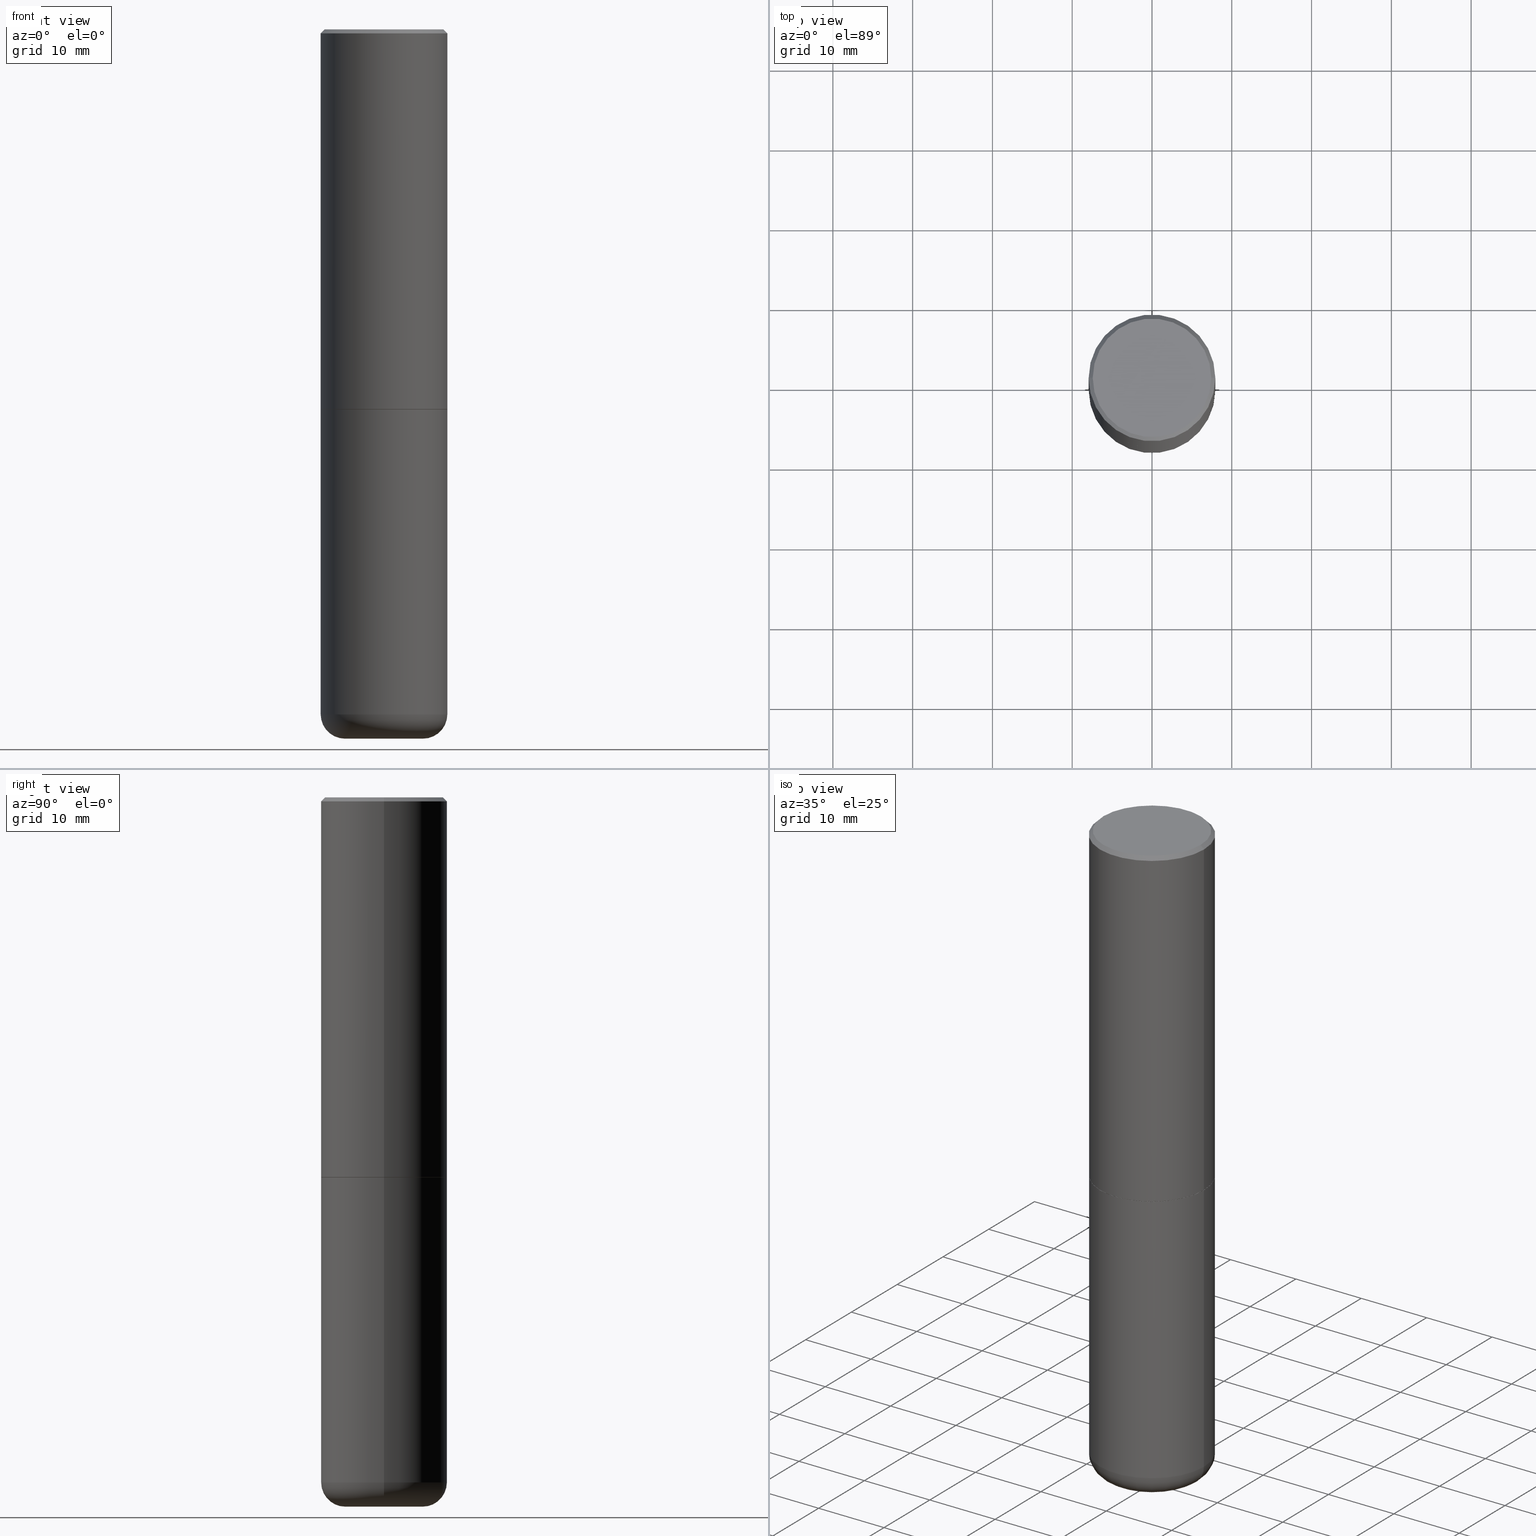
[diagram: canonical four-view strip — front | top / right | iso, engineering-drawing reading convention]
A machine part, canonical four-view strip (front | top / right | iso — engineering-drawing reading convention). The complete STEP part file that produces these views, byte-faithful:
ISO-10303-21;
HEADER;
FILE_DESCRIPTION (( 'STEP AP203' ),
    '1' );
FILE_NAME ('35120.STEP',
    '2022-07-29T12:17:41',
    ( '' ),
    ( '' ),
    'SwSTEP 2.0',
    'SolidWorks 2022',
    '' );
FILE_SCHEMA (( 'CONFIG_CONTROL_DESIGN' ));
ENDSEC;

DATA;
#1 = CIRCLE ( 'NONE', #484, 0.3114999999999997216 ) ;
#2 = ORIENTED_EDGE ( 'NONE', *, *, #405, .T. ) ;
#3 = COORDINATED_UNIVERSAL_TIME_OFFSET ( 5, 0, .BEHIND. ) ;
#4 = VERTEX_POINT ( 'NONE', #437 ) ;
#5 = ADVANCED_FACE ( 'NONE', ( #59 ), #174, .F. ) ;
#6 = MANIFOLD_SOLID_BREP ( 'Body-Move/Copy2[2]', #312 ) ;
#7 = CIRCLE ( 'NONE', #29, 0.2924999999999993716 ) ;
#8 = CARTESIAN_POINT ( 'NONE',  ( 8.559140821647976968E-29, -1.222018468595100619E-14, -3.499999999999999112 ) ) ;
#9 = DIRECTION ( 'NONE',  ( 1.000000000000000000, -6.982962677686266711E-15, 4.876176775795935232E-29 ) ) ;
#10 = EDGE_CURVE ( 'NONE', #79, #384, #96, .T. ) ;
#11 = CARTESIAN_POINT ( 'NONE',  ( -1.043851414335219820E-46, 1.490343170380447200E-32, 4.268512490100411279E-18 ) ) ;
#12 = DIRECTION ( 'NONE',  ( -2.438088387897960049E-29, 3.491481338843145188E-15, 1.000000000000000000 ) ) ;
#13 = AXIS2_PLACEMENT_3D ( 'NONE', #329, #177, #69 ) ;
#14 = DIRECTION ( 'NONE',  ( -2.445468806185136597E-29, 3.491481338843145583E-15, 1.000000000000000000 ) ) ;
#15 = ORIENTED_EDGE ( 'NONE', *, *, #283, .F. ) ;
#16 = FACE_OUTER_BOUND ( 'NONE', #22, .T. ) ;
#17 = DIRECTION ( 'NONE',  ( -2.445468806185136597E-29, 3.491481338843145583E-15, 1.000000000000000000 ) ) ;
#18 = EDGE_CURVE ( 'NONE', #230, #243, #7, .T. ) ;
#19 = CARTESIAN_POINT ( 'NONE',  ( 4.585254011597131119E-29, -6.546527510330898707E-15, -1.875000000000000000 ) ) ;
#20 = CARTESIAN_POINT ( 'NONE',  ( 0.3114999999999997216, -8.721720384430167884E-15, -1.875000000000000000 ) ) ;
#21 = AXIS2_PLACEMENT_3D ( 'NONE', #186, #336, #349 ) ;
#22 = EDGE_LOOP ( 'NONE', ( #306, #415, #15, #314 ) ) ;
#23 =( NAMED_UNIT ( * ) SI_UNIT ( $, .STERADIAN. ) SOLID_ANGLE_UNIT ( ) );
#24 = DIRECTION ( 'NONE',  ( 2.445468806185136597E-29, -3.491481338843145583E-15, -1.000000000000000000 ) ) ;
#25 = AXIS2_PLACEMENT_3D ( 'NONE', #464, #313, #238 ) ;
#26 = ADVANCED_FACE ( 'NONE', ( #282 ), #470, .F. ) ;
#27 = DIRECTION ( 'NONE',  ( 1.000000000000000000, -6.982962677686268288E-15, 0.000000000000000000 ) ) ;
#28 = CARTESIAN_POINT ( 'NONE',  ( -0.3124999999999997224, -1.085986778634146418E-15, -1.873999999999999666 ) ) ;
#29 = AXIS2_PLACEMENT_3D ( 'NONE', #254, #17, #167 ) ;
#30 = DIRECTION ( 'NONE',  ( -2.445468806185136597E-29, 3.491481338843145583E-15, 1.000000000000000000 ) ) ;
#31 = AXIS2_PLACEMENT_3D ( 'NONE', #327, #401, #64 ) ;
#32 = DIRECTION ( 'NONE',  ( 2.445468806185136597E-29, -3.491481338843145583E-15, -1.000000000000000000 ) ) ;
#33 = ADVANCED_FACE ( 'NONE', ( #180 ), #145, .T. ) ;
#34 = CARTESIAN_POINT ( 'NONE',  ( 0.3125000000000000000, -1.398339871545609435E-14, -3.380004569232299083 ) ) ;
#35 = ORIENTED_EDGE ( 'NONE', *, *, #211, .F. ) ;
#36 = COORDINATED_UNIVERSAL_TIME_OFFSET ( 5, 0, .BEHIND. ) ;
#37 = ORIENTED_EDGE ( 'NONE', *, *, #241, .F. ) ;
#38 = PERSON_AND_ORGANIZATION ( #190, #325 ) ;
#39 = ADVANCED_FACE ( 'NONE', ( #445 ), #142, .T. ) ;
#40 = ORIENTED_EDGE ( 'NONE', *, *, #273, .F. ) ;
#41 = ORIENTED_EDGE ( 'NONE', *, *, #241, .T. ) ;
#42 = ORIENTED_EDGE ( 'NONE', *, *, #61, .T. ) ;
#43 = CARTESIAN_POINT ( 'NONE',  ( 0.000000000000000000, 0.000000000000000000, 0.000000000000000000 ) ) ;
#44 = ORIENTED_EDGE ( 'NONE', *, *, #368, .T. ) ;
#45 = CONICAL_SURFACE ( 'NONE', #68, 0.1914528157401960695, 1.562069680534965865 ) ;
#46 = CARTESIAN_POINT ( 'NONE',  ( -0.1914528157401960695, -1.088327681909927092E-14, -3.499999999999999112 ) ) ;
#47 = DIRECTION ( 'NONE',  ( -2.445468806185136597E-29, 3.491481338843145583E-15, 1.000000000000000000 ) ) ;
#48 = CARTESIAN_POINT ( 'NONE',  ( 0.3124999999999997224, -8.728703347107853899E-15, -1.874999999999999778 ) ) ;
#49 = ORIENTED_EDGE ( 'NONE', *, *, #450, .T. ) ;
#50 = DIRECTION ( 'NONE',  ( -2.445468806185136597E-29, 3.491481338843145583E-15, 1.000000000000000000 ) ) ;
#51 = AXIS2_PLACEMENT_3D ( 'NONE', #366, #406, #381 ) ;
#52 = ADVANCED_FACE ( 'NONE', ( #105 ), #183, .F. ) ;
#53 = CC_DESIGN_PERSON_AND_ORGANIZATION_ASSIGNMENT ( #492, #379, ( #427 ) ) ;
#54 = CONICAL_SURFACE ( 'NONE', #176, 0.3114999999999997216, 0.7853981633972775267 ) ;
#55 = DIRECTION ( 'NONE',  ( 2.438088387897960049E-29, -3.491481338843145188E-15, -1.000000000000000000 ) ) ;
#56 = CARTESIAN_POINT ( 'NONE',  ( 4.585254011597131119E-29, -6.546527510330898707E-15, -1.875000000000000000 ) ) ;
#57 = ORIENTED_EDGE ( 'NONE', *, *, #428, .T. ) ;
#58 = CARTESIAN_POINT ( 'NONE',  ( -0.3124999999999997224, -6.953429145254704276E-15, -1.874999999999999778 ) ) ;
#59 = FACE_OUTER_BOUND ( 'NONE', #323, .T. ) ;
#60 = VECTOR ( 'NONE', #474, 39.37007874015748143 ) ;
#61 = EDGE_CURVE ( 'NONE', #384, #448, #293, .T. ) ;
#62 =( NAMED_UNIT ( * ) PLANE_ANGLE_UNIT ( ) SI_UNIT ( $, .RADIAN. ) );
#63 = CIRCLE ( 'NONE', #25, 0.3125000000000000000 ) ;
#64 = DIRECTION ( 'NONE',  ( 1.000000000000000000, -6.982962677686265922E-15, 0.000000000000000000 ) ) ;
#65 = FACE_OUTER_BOUND ( 'NONE', #209, .T. ) ;
#66 = MECHANICAL_CONTEXT ( 'NONE', #476, 'mechanical' ) ;
#67 = DIRECTION ( 'NONE',  ( -2.445468806185136597E-29, 3.491481338843145583E-15, 1.000000000000000000 ) ) ;
#68 = AXIS2_PLACEMENT_3D ( 'NONE', #8, #310, #163 ) ;
#69 = DIRECTION ( 'NONE',  ( 1.000000000000000000, -6.982962677686266711E-15, 0.000000000000000000 ) ) ;
#70 = ADVANCED_FACE ( 'NONE', ( #487 ), #45, .F. ) ;
#71 = CIRCLE ( 'NONE', #208, 0.3125000000000000000 ) ;
#72 = DIRECTION ( 'NONE',  ( -2.445468806185136877E-29, 3.491481338843145188E-15, 1.000000000000000000 ) ) ;
#73 = VERTEX_POINT ( 'NONE', #28 ) ;
#74 = APPROVAL_DATE_TIME ( #414, #471 ) ;
#75 = DIRECTION ( 'NONE',  ( -0.9999619230641716427, 6.952228252019315186E-15, -0.008726535498333042040 ) ) ;
#76 = EDGE_LOOP ( 'NONE', ( #252, #235, #35, #119 ) ) ;
#77 = DATE_TIME_ROLE ( 'creation_date' ) ;
#78 = CC_DESIGN_DATE_AND_TIME_ASSIGNMENT ( #151, #77, ( #214 ) ) ;
#79 = VERTEX_POINT ( 'NONE', #347 ) ;
#80 = PRODUCT_DEFINITION_SHAPE ( 'NONE', 'NONE',  #214 ) ;
#81 = CARTESIAN_POINT ( 'NONE',  ( 4.890937612370309067E-31, -6.982962677686343378E-17, -0.02000000000000014960 ) ) ;
#82 = EDGE_CURVE ( 'NONE', #359, #458, #383, .T. ) ;
#83 = CARTESIAN_POINT ( 'NONE',  ( -0.3124999999999994449, 2.112346210000091499E-15, -0.02000000000000014960 ) ) ;
#84 = ORIENTED_EDGE ( 'NONE', *, *, #284, .F. ) ;
#85 = AXIS2_PLACEMENT_3D ( 'NONE', #441, #370, #257 ) ;
#86 = CARTESIAN_POINT ( 'NONE',  ( 4.582808542790944955E-29, -6.543036028992054122E-15, -1.873999999999999666 ) ) ;
#87 = ORIENTED_EDGE ( 'NONE', *, *, #18, .T. ) ;
#88 = LINE ( 'NONE', #393, #425 ) ;
#89 = ORIENTED_EDGE ( 'NONE', *, *, #165, .F. ) ;
#90 = ADVANCED_FACE ( 'NONE', ( #189 ), #237, .T. ) ;
#91 = ORIENTED_EDGE ( 'NONE', *, *, #82, .T. ) ;
#92 = DIRECTION ( 'NONE',  ( 1.000000000000000000, -6.982962677686266711E-15, 0.000000000000000000 ) ) ;
#93 = DIMENSIONAL_EXPONENTS ( 1.000000000000000000, 0.000000000000000000, 0.000000000000000000, 0.000000000000000000, 0.000000000000000000, 0.000000000000000000, 0.000000000000000000 ) ;
#94 = LOCAL_TIME ( 8, 17, 41.00000000000000000, #449 ) ;
#95 = DIRECTION ( 'NONE',  ( 1.000000000000000000, -6.982962677686261977E-15, 0.000000000000000000 ) ) ;
#96 = LINE ( 'NONE', #20, #60 ) ;
#97 = VERTEX_POINT ( 'NONE', #421 ) ;
#98 = LENGTH_MEASURE_WITH_UNIT ( LENGTH_MEASURE( 0.02539999999999999897 ), #149 );
#99 = UNCERTAINTY_MEASURE_WITH_UNIT (LENGTH_MEASURE( 1.000000000000000082E-05 ), #486, 'distance_accuracy_value', 'NONE');
#100 = DIRECTION ( 'NONE',  ( 0.7071067811865464625, -7.319954787623252890E-15, -0.7071067811865485719 ) ) ;
#101 = CARTESIAN_POINT ( 'NONE',  ( 0.000000000000000000, 0.000000000000000000, 0.000000000000000000 ) ) ;
#102 = PERSON_AND_ORGANIZATION ( #190, #325 ) ;
#103 = APPLICATION_PROTOCOL_DEFINITION ( 'international standard', 'config_control_design', 1994, #476 ) ;
#104 = CARTESIAN_POINT ( 'NONE',  ( 0.000000000000000000, 0.000000000000000000, 0.000000000000000000 ) ) ;
#105 = FACE_OUTER_BOUND ( 'NONE', #396, .T. ) ;
#106 = DATE_AND_TIME ( #181, #264 ) ;
#107 = ADVANCED_FACE ( 'NONE', ( #227 ), #338, .T. ) ;
#108 = DIRECTION ( 'NONE',  ( -2.445468806185136597E-29, 3.491481338843145583E-15, 1.000000000000000000 ) ) ;
#109 = CARTESIAN_POINT ( 'NONE',  ( 4.890937612370309067E-31, -6.982962677686343378E-17, -0.02000000000000014960 ) ) ;
#110 = AXIS2_PLACEMENT_3D ( 'NONE', #81, #224, #184 ) ;
#111 = ORIENTED_EDGE ( 'NONE', *, *, #457, .T. ) ;
#112 = SECURITY_CLASSIFICATION_LEVEL ( 'unclassified' ) ;
#113 = CONICAL_SURFACE ( 'NONE', #355, 0.3114999999999997216, 0.7853981633972775267 ) ;
#114 = DIRECTION ( 'NONE',  ( -2.445468806185136597E-29, 3.491481338843145583E-15, 1.000000000000000000 ) ) ;
#115 = ORIENTED_EDGE ( 'NONE', *, *, #156, .T. ) ;
#116 = PERSON_AND_ORGANIZATION ( #190, #325 ) ;
#117 = CC_DESIGN_PERSON_AND_ORGANIZATION_ASSIGNMENT ( #38, #193, ( #417 ) ) ;
#118 = ADVANCED_BREP_SHAPE_REPRESENTATION ( '35120', ( #178, #6, #460 ), #291 ) ;
#119 = ORIENTED_EDGE ( 'NONE', *, *, #61, .F. ) ;
#120 = PERSON_AND_ORGANIZATION_ROLE ( 'design_owner' ) ;
#121 = ORIENTED_EDGE ( 'NONE', *, *, #382, .T. ) ;
#122 = ORIENTED_EDGE ( 'NONE', *, *, #10, .T. ) ;
#123 = AXIS2_PLACEMENT_3D ( 'NONE', #182, #140, #408 ) ;
#124 = ADVANCED_FACE ( 'NONE', ( #489 ), #136, .T. ) ;
#125 = CARTESIAN_POINT ( 'NONE',  ( -0.1714528157401960240, -1.102232667873224292E-14, -3.499825462644184704 ) ) ;
#126 = CARTESIAN_POINT ( 'NONE',  ( 8.558713995988817956E-29, -1.221957529203025001E-14, -3.499825462644184704 ) ) ;
#127 = ORIENTED_EDGE ( 'NONE', *, *, #233, .T. ) ;
#128 = CARTESIAN_POINT ( 'NONE',  ( 8.558713995988817956E-29, -1.221957529203025001E-14, -3.499825462644184704 ) ) ;
#129 = ORIENTED_EDGE ( 'NONE', *, *, #317, .T. ) ;
#130 = CARTESIAN_POINT ( 'NONE',  ( 2.042516583223228201E-15, 0.2924999999999993716, -1.019124035366567634E-15 ) ) ;
#131 = CARTESIAN_POINT ( 'NONE',  ( 0.1914528157401960695, -1.353364634500434425E-14, -3.499999999999999112 ) ) ;
#132 = EDGE_CURVE ( 'NONE', #243, #279, #451, .T. ) ;
#133 = ORIENTED_EDGE ( 'NONE', *, *, #450, .F. ) ;
#134 = DIRECTION ( 'NONE',  ( 0.9999619230641716427, -6.890705306874701477E-15, -0.008726535498333042040 ) ) ;
#135 = CARTESIAN_POINT ( 'NONE',  ( -0.3114999999999997216, -4.327888434089965810E-15, -1.875000000000000000 ) ) ;
#136 = TOROIDAL_SURFACE ( 'NONE', #21, 0.1925000000000002820, 0.1200000000000000233 ) ;
#137 = ORIENTED_EDGE ( 'NONE', *, *, #398, .T. ) ;
#138 = VECTOR ( 'NONE', #100, 39.37007874015748143 ) ;
#139 = LINE ( 'NONE', #443, #333 ) ;
#140 = DIRECTION ( 'NONE',  ( 2.438088387897960049E-29, -3.491481338843145188E-15, -1.000000000000000000 ) ) ;
#141 = DIRECTION ( 'NONE',  ( 1.000000000000000000, 0.000000000000000000, 0.000000000000000000 ) ) ;
#142 = TOROIDAL_SURFACE ( 'NONE', #51, 0.1925000000000002820, 0.1200000000000000233 ) ;
#143 = DIRECTION ( 'NONE',  ( -2.445468806185136877E-29, 3.491481338843145188E-15, 1.000000000000000000 ) ) ;
#144 = VECTOR ( 'NONE', #358, 39.37007874015748143 ) ;
#145 = CYLINDRICAL_SURFACE ( 'NONE', #285, 0.3124999999999996114 ) ;
#146 = CC_DESIGN_PERSON_AND_ORGANIZATION_ASSIGNMENT ( #191, #231, ( #427 ) ) ;
#147 = EDGE_CURVE ( 'NONE', #4, #187, #462, .T. ) ;
#148 = CARTESIAN_POINT ( 'NONE',  ( 0.1714528157401960240, -1.339582699112815663E-14, -3.499825462644184704 ) ) ;
#149 =( LENGTH_UNIT ( ) NAMED_UNIT ( * ) SI_UNIT ( $, .METRE. ) );
#150 = DIRECTION ( 'NONE',  ( -0.7071067811865464625, 2.468850131082245622E-15, -0.7071067811865485719 ) ) ;
#151 = DATE_AND_TIME ( #155, #94 ) ;
#152 = DIRECTION ( 'NONE',  ( 1.000000000000000000, -6.982962677686266711E-15, 4.876176775795935232E-29 ) ) ;
#153 = AXIS2_PLACEMENT_3D ( 'NONE', #128, #47, #203 ) ;
#154 = VERTEX_POINT ( 'NONE', #403 ) ;
#155 = CALENDAR_DATE ( 2022, 29, 7 ) ;
#156 = EDGE_CURVE ( 'NONE', #154, #97, #269, .T. ) ;
#157 = CALENDAR_DATE ( 2022, 29, 7 ) ;
#158 = EDGE_LOOP ( 'NONE', ( #356, #432 ) ) ;
#159 = AXIS2_PLACEMENT_3D ( 'NONE', #299, #376, #258 ) ;
#160 = CARTESIAN_POINT ( 'NONE',  ( 4.890937612370309067E-31, -6.982962677686343378E-17, -0.02000000000000014960 ) ) ;
#161 = ADVANCED_FACE ( 'NONE', ( #65 ), #330, .T. ) ;
#162 = AXIS2_PLACEMENT_3D ( 'NONE', #11, #50, #169 ) ;
#163 = DIRECTION ( 'NONE',  ( -1.000000000000000000, 6.982962677686268288E-15, 0.000000000000000000 ) ) ;
#164 = LINE ( 'NONE', #131, #410 ) ;
#165 = EDGE_CURVE ( 'NONE', #279, #448, #320, .T. ) ;
#166 = DIRECTION ( 'NONE',  ( -2.445468806185136877E-29, 3.491481338843145188E-15, 1.000000000000000000 ) ) ;
#167 = DIRECTION ( 'NONE',  ( 1.000000000000000000, -6.982962677686266711E-15, 4.876067333457700127E-29 ) ) ;
#168 = ORIENTED_EDGE ( 'NONE', *, *, #428, .F. ) ;
#169 = DIRECTION ( 'NONE',  ( 1.000000000000000000, -6.982962677686266711E-15, 4.876067333457700127E-29 ) ) ;
#170 = CARTESIAN_POINT ( 'NONE',  ( 4.585254011597131119E-29, -6.546527510330898707E-15, -1.875000000000000000 ) ) ;
#171 = EDGE_LOOP ( 'NONE', ( #37, #431, #2, #195 ) ) ;
#172 = EDGE_CURVE ( 'NONE', #187, #154, #332, .T. ) ;
#173 = DIRECTION ( 'NONE',  ( -2.445468806185136597E-29, 3.491481338843145583E-15, 1.000000000000000000 ) ) ;
#174 = CONICAL_SURFACE ( 'NONE', #392, 0.1914528157401960695, 1.562069680534965865 ) ;
#175 = ORIENTED_EDGE ( 'NONE', *, *, #456, .F. ) ;
#176 = AXIS2_PLACEMENT_3D ( 'NONE', #170, #275, #204 ) ;
#177 = DIRECTION ( 'NONE',  ( -6.982962677686266711E-15, -1.000000000000000000, 3.491481338843145583E-15 ) ) ;
#178 = MANIFOLD_SOLID_BREP ( 'Body-Move/Copy2[1]', #352 ) ;
#179 = DIRECTION ( 'NONE',  ( -2.445468806185136597E-29, 3.491481338843145583E-15, 1.000000000000000000 ) ) ;
#180 = FACE_OUTER_BOUND ( 'NONE', #326, .T. ) ;
#181 = CALENDAR_DATE ( 2022, 29, 7 ) ;
#182 = CARTESIAN_POINT ( 'NONE',  ( 2.182175836777002129E-15, 0.3124999999999931721, -1.875000000000000888 ) ) ;
#183 = CONICAL_SURFACE ( 'NONE', #246, 0.1714528157401960240, 1.535889741755011251 ) ;
#184 = DIRECTION ( 'NONE',  ( -1.000000000000000000, 6.982962677686267499E-15, 0.000000000000000000 ) ) ;
#185 = LOCAL_TIME ( 8, 17, 41.00000000000000000, #454 ) ;
#186 = CARTESIAN_POINT ( 'NONE',  ( 8.265695738820817389E-29, -1.180122287867913601E-14, -3.380004569232299083 ) ) ;
#187 = VERTEX_POINT ( 'NONE', #485 ) ;
#188 = DIRECTION ( 'NONE',  ( -2.445468806185136597E-29, 3.491481338843145583E-15, 1.000000000000000000 ) ) ;
#189 = FACE_OUTER_BOUND ( 'NONE', #346, .T. ) ;
#190 = PERSON ( 'UNSPECIFIED', 'UNSPECIFIED', 'UNSPECIFIED', ('UNSPECIFIED'), ('UNSPECIFIED'), ('UNSPECIFIED') ) ;
#191 = PERSON_AND_ORGANIZATION ( #190, #325 ) ;
#192 = VECTOR ( 'NONE', #286, 39.37007874015748143 ) ;
#193 = PERSON_AND_ORGANIZATION_ROLE ( 'classification_officer' ) ;
#194 = ORIENTED_EDGE ( 'NONE', *, *, #147, .F. ) ;
#195 = ORIENTED_EDGE ( 'NONE', *, *, #368, .F. ) ;
#196 = ORIENTED_EDGE ( 'NONE', *, *, #147, .T. ) ;
#197 = APPROVAL ( #265, 'UNSPECIFIED' ) ;
#198 = CARTESIAN_POINT ( 'NONE',  ( -0.1925000000000002820, -1.043342811234094233E-14, -3.380004569232299083 ) ) ;
#199 = ADVANCED_FACE ( 'NONE', ( #229 ), #201, .T. ) ;
#200 = VERTEX_POINT ( 'NONE', #148 ) ;
#201 = CYLINDRICAL_SURFACE ( 'NONE', #490, 0.3124999999999998890 ) ;
#202 = AXIS2_PLACEMENT_3D ( 'NONE', #483, #179, #27 ) ;
#203 = DIRECTION ( 'NONE',  ( 1.000000000000000000, -6.982962677686261977E-15, 0.000000000000000000 ) ) ;
#204 = DIRECTION ( 'NONE',  ( 1.000000000000000000, -6.982962677686265922E-15, 0.000000000000000000 ) ) ;
#205 = ORIENTED_EDGE ( 'NONE', *, *, #233, .F. ) ;
#206 = ORIENTED_EDGE ( 'NONE', *, *, #165, .T. ) ;
#207 = LINE ( 'NONE', #433, #144 ) ;
#208 = AXIS2_PLACEMENT_3D ( 'NONE', #375, #334, #216 ) ;
#209 = EDGE_LOOP ( 'NONE', ( #239, #321, #247, #206 ) ) ;
#210 = DIRECTION ( 'NONE',  ( -2.445468806185136597E-29, 3.491481338843145583E-15, 1.000000000000000000 ) ) ;
#211 = EDGE_CURVE ( 'NONE', #448, #279, #217, .T. ) ;
#212 = ORIENTED_EDGE ( 'NONE', *, *, #222, .F. ) ;
#213 = LINE ( 'NONE', #390, #192 ) ;
#214 = PRODUCT_DEFINITION ( 'UNKNOWN', '', #427, #399 ) ;
#215 = ORIENTED_EDGE ( 'NONE', *, *, #262, .F. ) ;
#216 = DIRECTION ( 'NONE',  ( 1.000000000000000000, -6.982962677686269077E-15, 0.000000000000000000 ) ) ;
#217 = CIRCLE ( 'NONE', #298, 0.3124999999999994449 ) ;
#218 = DIRECTION ( 'NONE',  ( -1.000000000000000000, 6.982962677686268288E-15, 0.000000000000000000 ) ) ;
#219 = SHAPE_DEFINITION_REPRESENTATION ( #80, #118 ) ;
#220 = EDGE_LOOP ( 'NONE', ( #40, #137, #122, #255 ) ) ;
#221 = AXIS2_PLACEMENT_3D ( 'NONE', #130, #55, #357 ) ;
#222 = EDGE_CURVE ( 'NONE', #200, #187, #360, .T. ) ;
#223 = DIRECTION ( 'NONE',  ( 1.000000000000000000, -6.982962677686266711E-15, 4.876176775795935232E-29 ) ) ;
#224 = DIRECTION ( 'NONE',  ( 2.445468806185136597E-29, -3.491481338843145583E-15, -1.000000000000000000 ) ) ;
#225 = FACE_OUTER_BOUND ( 'NONE', #288, .T. ) ;
#226 = DIRECTION ( 'NONE',  ( 2.445468806185136597E-29, -3.491481338843145583E-15, -1.000000000000000000 ) ) ;
#227 = FACE_OUTER_BOUND ( 'NONE', #76, .T. ) ;
#228 = APPLICATION_PROTOCOL_DEFINITION ( 'international standard', 'config_control_design', 1994, #459 ) ;
#229 = FACE_OUTER_BOUND ( 'NONE', #171, .T. ) ;
#230 = VERTEX_POINT ( 'NONE', #350 ) ;
#231 = PERSON_AND_ORGANIZATION_ROLE ( 'creator' ) ;
#232 = AXIS2_PLACEMENT_3D ( 'NONE', #101, #30, #223 ) ;
#233 = EDGE_CURVE ( 'NONE', #4, #200, #88, .T. ) ;
#234 = PRODUCT_RELATED_PRODUCT_CATEGORY ( 'detail', '', ( #271 ) ) ;
#235 = ORIENTED_EDGE ( 'NONE', *, *, #262, .T. ) ;
#236 = DIRECTION ( 'NONE',  ( -2.445468806185136597E-29, 3.491481338843145583E-15, 1.000000000000000000 ) ) ;
#237 = CONICAL_SURFACE ( 'NONE', #348, 0.3124999999999994449, 0.7853981633974468357 ) ;
#238 = DIRECTION ( 'NONE',  ( 1.000000000000000000, -6.982962677686269077E-15, 0.000000000000000000 ) ) ;
#239 = ORIENTED_EDGE ( 'NONE', *, *, #457, .F. ) ;
#240 = CIRCLE ( 'NONE', #374, 0.3124999999999997224 ) ;
#241 = EDGE_CURVE ( 'NONE', #97, #458, #272, .T. ) ;
#242 = CARTESIAN_POINT ( 'NONE',  ( 4.890937612370309067E-31, -6.982962677686343378E-17, -0.02000000000000014960 ) ) ;
#243 = VERTEX_POINT ( 'NONE', #424 ) ;
#244 = DIRECTION ( 'NONE',  ( 1.000000000000000000, -6.982962677686265922E-15, 4.876176775795935793E-29 ) ) ;
#245 = DIRECTION ( 'NONE',  ( 2.445468806185136597E-29, -3.491481338843145583E-15, -1.000000000000000000 ) ) ;
#246 = AXIS2_PLACEMENT_3D ( 'NONE', #413, #32, #294 ) ;
#247 = ORIENTED_EDGE ( 'NONE', *, *, #132, .T. ) ;
#248 = PLANE ( 'NONE',  #221 ) ;
#249 = LOCAL_TIME ( 8, 17, 41.00000000000000000, #36 ) ;
#250 = CC_DESIGN_APPROVAL ( #471, ( #214 ) ) ;
#251 = APPROVAL ( #373, 'UNSPECIFIED' ) ;
#252 = ORIENTED_EDGE ( 'NONE', *, *, #283, .T. ) ;
#253 = CARTESIAN_POINT ( 'NONE',  ( 0.3124999999999997224, -8.725211865769010891E-15, -1.873999999999999666 ) ) ;
#254 = CARTESIAN_POINT ( 'NONE',  ( -1.043851414335219820E-46, 1.490343170380447200E-32, 4.268512490100411279E-18 ) ) ;
#255 = ORIENTED_EDGE ( 'NONE', *, *, #317, .F. ) ;
#256 = ADVANCED_FACE ( 'NONE', ( #387 ), #353, .F. ) ;
#257 = DIRECTION ( 'NONE',  ( 1.000000000000000000, -6.982962677686268288E-15, 0.000000000000000000 ) ) ;
#258 = DIRECTION ( 'NONE',  ( 1.000000000000000000, -6.982962677686266711E-15, 0.000000000000000000 ) ) ;
#259 = DIRECTION ( 'NONE',  ( -1.000000000000000000, 6.982962677686267499E-15, 0.000000000000000000 ) ) ;
#260 = ORIENTED_EDGE ( 'NONE', *, *, #341, .F. ) ;
#261 = CYLINDRICAL_SURFACE ( 'NONE', #232, 0.3124999999999998890 ) ;
#262 = EDGE_CURVE ( 'NONE', #73, #279, #213, .T. ) ;
#263 = DIRECTION ( 'NONE',  ( 1.000000000000000000, -6.982962677686266711E-15, 4.876176775795935232E-29 ) ) ;
#264 = LOCAL_TIME ( 8, 17, 41.00000000000000000, #404 ) ;
#265 = APPROVAL_STATUS ( 'not_yet_approved' ) ;
#266 = DIRECTION ( 'NONE',  ( 1.000000000000000000, -6.982962677686267499E-15, 0.000000000000000000 ) ) ;
#267 = APPROVAL_STATUS ( 'not_yet_approved' ) ;
#268 = CALENDAR_DATE ( 2022, 29, 7 ) ;
#269 = CIRCLE ( 'NONE', #407, 0.1200000000000000233 ) ;
#270 = CIRCLE ( 'NONE', #386, 0.3124999999999997224 ) ;
#271 = PRODUCT ( '35120', '35120', '', ( #66 ) ) ;
#272 = LINE ( 'NONE', #469, #274 ) ;
#273 = EDGE_CURVE ( 'NONE', #280, #73, #207, .T. ) ;
#274 = VECTOR ( 'NONE', #166, 39.37007874015748143 ) ;
#275 = DIRECTION ( 'NONE',  ( -2.445468806185136597E-29, 3.491481338843145583E-15, 1.000000000000000000 ) ) ;
#276 = CIRCLE ( 'NONE', #31, 0.3114999999999997216 ) ;
#277 = DIRECTION ( 'NONE',  ( 1.000000000000000000, -6.982962677686266711E-15, 0.000000000000000000 ) ) ;
#278 = ADVANCED_FACE ( 'NONE', ( #430 ), #113, .T. ) ;
#279 = VERTEX_POINT ( 'NONE', #83 ) ;
#280 = VERTEX_POINT ( 'NONE', #135 ) ;
#281 = DIRECTION ( 'NONE',  ( -2.445468806185136597E-29, 3.491481338843145583E-15, 1.000000000000000000 ) ) ;
#282 = FACE_OUTER_BOUND ( 'NONE', #318, .T. ) ;
#283 = EDGE_CURVE ( 'NONE', #384, #73, #240, .T. ) ;
#284 = EDGE_CURVE ( 'NONE', #97, #411, #63, .T. ) ;
#285 = AXIS2_PLACEMENT_3D ( 'NONE', #104, #108, #152 ) ;
#286 = DIRECTION ( 'NONE',  ( -2.445468806185136877E-29, 3.491481338843145188E-15, 1.000000000000000000 ) ) ;
#287 = CIRCLE ( 'NONE', #13, 0.1200000000000000233 ) ;
#288 = EDGE_LOOP ( 'NONE', ( #57, #41, #315, #290 ) ) ;
#289 = LINE ( 'NONE', #480, #138 ) ;
#290 = ORIENTED_EDGE ( 'NONE', *, *, #405, .F. ) ;
#291 =( GEOMETRIC_REPRESENTATION_CONTEXT ( 3 ) GLOBAL_UNCERTAINTY_ASSIGNED_CONTEXT ( ( #99 ) ) GLOBAL_UNIT_ASSIGNED_CONTEXT ( ( #486, #62, #23 ) ) REPRESENTATION_CONTEXT ( 'NONE', 'WORKASPACE' ) );
#292 = CARTESIAN_POINT ( 'NONE',  ( 0.1914528157401960695, -1.355709255280274145E-14, -3.499999999999999112 ) ) ;
#293 = LINE ( 'NONE', #380, #455 ) ;
#294 = DIRECTION ( 'NONE',  ( -1.000000000000000000, 6.982962677686261977E-15, 0.000000000000000000 ) ) ;
#295 = EDGE_CURVE ( 'NONE', #243, #230, #418, .T. ) ;
#296 = ORIENTED_EDGE ( 'NONE', *, *, #423, .T. ) ;
#297 = CALENDAR_DATE ( 2022, 29, 7 ) ;
#298 = AXIS2_PLACEMENT_3D ( 'NONE', #242, #173, #385 ) ;
#299 = CARTESIAN_POINT ( 'NONE',  ( 4.585254011597130558E-29, -6.546527510330897918E-15, -1.874999999999999778 ) ) ;
#300 = ORIENTED_EDGE ( 'NONE', *, *, #295, .T. ) ;
#301 = DATE_AND_TIME ( #297, #249 ) ;
#302 = AXIS2_PLACEMENT_3D ( 'NONE', #436, #351, #95 ) ;
#303 = DATE_AND_TIME ( #157, #307 ) ;
#304 = ORIENTED_EDGE ( 'NONE', *, *, #156, .F. ) ;
#305 = AXIS2_PLACEMENT_3D ( 'NONE', #43, #67, #263 ) ;
#306 = ORIENTED_EDGE ( 'NONE', *, *, #388, .T. ) ;
#307 = LOCAL_TIME ( 8, 17, 41.00000000000000000, #3 ) ;
#308 = DIRECTION ( 'NONE',  ( -1.000000000000000000, 7.105427357601006592E-15, 0.000000000000000000 ) ) ;
#309 = CIRCLE ( 'NONE', #202, 0.1914528157401960695 ) ;
#310 = DIRECTION ( 'NONE',  ( 2.445468806185136597E-29, -3.491481338843145583E-15, -1.000000000000000000 ) ) ;
#311 = CARTESIAN_POINT ( 'NONE',  ( 4.585254011597130558E-29, -6.546527510330897918E-15, -1.874999999999999778 ) ) ;
#312 = CLOSED_SHELL ( 'NONE', ( #378, #107, #90, #161, #33, #278, #256, #371 ) ) ;
#313 = DIRECTION ( 'NONE',  ( -2.445468806185136597E-29, 3.491481338843145583E-15, 1.000000000000000000 ) ) ;
#314 = ORIENTED_EDGE ( 'NONE', *, *, #10, .F. ) ;
#315 = ORIENTED_EDGE ( 'NONE', *, *, #82, .F. ) ;
#316 = DIRECTION ( 'NONE',  ( 1.000000000000000000, -6.982962677686266711E-15, 0.000000000000000000 ) ) ;
#317 = EDGE_CURVE ( 'NONE', #73, #384, #440, .T. ) ;
#318 = EDGE_LOOP ( 'NONE', ( #205, #196, #212 ) ) ;
#319 = DIRECTION ( 'NONE',  ( -2.445468806185136597E-29, 3.491481338843145583E-15, 1.000000000000000000 ) ) ;
#320 = CIRCLE ( 'NONE', #369, 0.3124999999999994449 ) ;
#321 = ORIENTED_EDGE ( 'NONE', *, *, #295, .F. ) ;
#322 = DIRECTION ( 'NONE',  ( 0.9993908270190957621, -6.978169709227537544E-15, -0.03489949670249974795 ) ) ;
#323 = EDGE_LOOP ( 'NONE', ( #260, #422, #429, #345 ) ) ;
#324 = CC_DESIGN_APPROVAL ( #251, ( #417 ) ) ;
#325 = ORGANIZATION ( 'UNSPECIFIED', 'UNSPECIFIED', '' ) ;
#326 = EDGE_LOOP ( 'NONE', ( #215, #129, #42, #89 ) ) ;
#327 = CARTESIAN_POINT ( 'NONE',  ( 4.585254011597131119E-29, -6.546527510330898707E-15, -1.875000000000000000 ) ) ;
#328 = DATE_TIME_ROLE ( 'classification_date' ) ;
#329 = CARTESIAN_POINT ( 'NONE',  ( 0.1925000000000002820, -1.314544319413374424E-14, -3.380004569232299083 ) ) ;
#330 = CONICAL_SURFACE ( 'NONE', #110, 0.3124999999999994449, 0.7853981633974468357 ) ;
#331 = CARTESIAN_POINT ( 'NONE',  ( 0.3124999999999994449, -2.213735251080463362E-15, -0.02000000000000014960 ) ) ;
#332 = LINE ( 'NONE', #46, #434 ) ;
#333 = VECTOR ( 'NONE', #143, 39.37007874015748143 ) ;
#334 = DIRECTION ( 'NONE',  ( -2.445468806185136597E-29, 3.491481338843145583E-15, 1.000000000000000000 ) ) ;
#335 = CC_DESIGN_PERSON_AND_ORGANIZATION_ASSIGNMENT ( #488, #453, ( #214 ) ) ;
#336 = DIRECTION ( 'NONE',  ( -2.445468806185136597E-29, 3.491481338843145583E-15, 1.000000000000000000 ) ) ;
#337 = APPROVAL_ROLE ( '' ) ;
#338 = CYLINDRICAL_SURFACE ( 'NONE', #305, 0.3124999999999996114 ) ;
#339 = PERSON_AND_ORGANIZATION ( #190, #325 ) ;
#340 = AXIS2_PLACEMENT_3D ( 'NONE', #126, #245, #391 ) ;
#341 = EDGE_CURVE ( 'NONE', #200, #468, #164, .T. ) ;
#342 = EDGE_LOOP ( 'NONE', ( #300, #87 ) ) ;
#343 = APPROVAL_ROLE ( '' ) ;
#344 = ORIENTED_EDGE ( 'NONE', *, *, #18, .F. ) ;
#345 = ORIENTED_EDGE ( 'NONE', *, *, #423, .F. ) ;
#346 = EDGE_LOOP ( 'NONE', ( #344, #111, #466, #389 ) ) ;
#347 = CARTESIAN_POINT ( 'NONE',  ( 0.3114999999999997216, -8.721720384430167884E-15, -1.875000000000000000 ) ) ;
#348 = AXIS2_PLACEMENT_3D ( 'NONE', #160, #226, #259 ) ;
#349 = DIRECTION ( 'NONE',  ( 1.000000000000000000, -6.982962677686269077E-15, 4.883557194083113462E-29 ) ) ;
#350 = CARTESIAN_POINT ( 'NONE',  ( 0.2924999999999993716, -2.110215457714315987E-15, 4.268512490114932791E-18 ) ) ;
#351 = DIRECTION ( 'NONE',  ( -2.445468806185136597E-29, 3.491481338843145583E-15, 1.000000000000000000 ) ) ;
#352 = CLOSED_SHELL ( 'NONE', ( #70, #124, #420, #52, #26, #439, #199, #39, #5 ) ) ;
#353 = PLANE ( 'NONE',  #400 ) ;
#354 = CC_DESIGN_SECURITY_CLASSIFICATION ( #417, ( #427 ) ) ;
#355 = AXIS2_PLACEMENT_3D ( 'NONE', #19, #210, #426 ) ;
#356 = ORIENTED_EDGE ( 'NONE', *, *, #388, .F. ) ;
#357 = DIRECTION ( 'NONE',  ( -1.000000000000000000, 6.982962677686265922E-15, -4.876176775795935793E-29 ) ) ;
#358 = DIRECTION ( 'NONE',  ( -0.7071067811864267805, 7.493145998869918709E-15, 0.7071067811866682540 ) ) ;
#359 = VERTEX_POINT ( 'NONE', #48 ) ;
#360 = CIRCLE ( 'NONE', #153, 0.1714528157401960240 ) ;
#361 = EDGE_LOOP ( 'NONE', ( #296, #115, #168, #175 ) ) ;
#362 = PLANE ( 'NONE',  #123 ) ;
#363 = CARTESIAN_POINT ( 'NONE',  ( 8.559140821647976968E-29, -1.222018468595100619E-14, -3.499999999999999112 ) ) ;
#364 = APPROVAL_PERSON_ORGANIZATION ( #116, #471, #337 ) ;
#365 = FACE_OUTER_BOUND ( 'NONE', #491, .T. ) ;
#366 = CARTESIAN_POINT ( 'NONE',  ( 8.265695738820817389E-29, -1.180122287867913601E-14, -3.380004569232299083 ) ) ;
#367 = APPROVAL_ROLE ( '' ) ;
#368 = EDGE_CURVE ( 'NONE', #458, #359, #270, .T. ) ;
#369 = AXIS2_PLACEMENT_3D ( 'NONE', #109, #114, #266 ) ;
#370 = DIRECTION ( 'NONE',  ( -2.445468806185136597E-29, 3.491481338843145583E-15, 1.000000000000000000 ) ) ;
#371 = ADVANCED_FACE ( 'NONE', ( #463 ), #248, .F. ) ;
#372 = CARTESIAN_POINT ( 'NONE',  ( -0.3124999999999994449, 2.112346210000091499E-15, -0.02000000000000014960 ) ) ;
#373 = APPROVAL_STATUS ( 'not_yet_approved' ) ;
#374 = AXIS2_PLACEMENT_3D ( 'NONE', #467, #14, #277 ) ;
#375 = CARTESIAN_POINT ( 'NONE',  ( 8.265695738820817389E-29, -1.180122287867913601E-14, -3.380004569232299083 ) ) ;
#376 = DIRECTION ( 'NONE',  ( -2.445468806185136597E-29, 3.491481338843145583E-15, 1.000000000000000000 ) ) ;
#377 = PERSON_AND_ORGANIZATION ( #190, #325 ) ;
#378 = ADVANCED_FACE ( 'NONE', ( #16 ), #54, .T. ) ;
#379 = PERSON_AND_ORGANIZATION_ROLE ( 'design_supplier' ) ;
#380 = CARTESIAN_POINT ( 'NONE',  ( 0.3124999999999996114, -2.182175836776955586E-15, 1.523805242436227833E-29 ) ) ;
#381 = DIRECTION ( 'NONE',  ( 1.000000000000000000, -6.982962677686269077E-15, 4.883557194083113462E-29 ) ) ;
#382 = EDGE_CURVE ( 'NONE', #187, #200, #452, .T. ) ;
#383 = CIRCLE ( 'NONE', #159, 0.3124999999999997224 ) ;
#384 = VERTEX_POINT ( 'NONE', #253 ) ;
#385 = DIRECTION ( 'NONE',  ( 1.000000000000000000, -6.982962677686267499E-15, 0.000000000000000000 ) ) ;
#386 = AXIS2_PLACEMENT_3D ( 'NONE', #311, #281, #92 ) ;
#387 = FACE_OUTER_BOUND ( 'NONE', #158, .T. ) ;
#388 = EDGE_CURVE ( 'NONE', #79, #280, #1, .T. ) ;
#389 = ORIENTED_EDGE ( 'NONE', *, *, #132, .F. ) ;
#390 = CARTESIAN_POINT ( 'NONE',  ( -0.3124999999999996114, 2.220446049250310320E-15, -1.537167215704655990E-29 ) ) ;
#391 = DIRECTION ( 'NONE',  ( -1.000000000000000000, 6.982962677686261977E-15, 0.000000000000000000 ) ) ;
#392 = AXIS2_PLACEMENT_3D ( 'NONE', #363, #24, #218 ) ;
#393 = CARTESIAN_POINT ( 'NONE',  ( 0.1714528157401960240, -1.339582699112815663E-14, -3.499825462644184704 ) ) ;
#394 = APPROVAL_PERSON_ORGANIZATION ( #102, #251, #367 ) ;
#395 = CIRCLE ( 'NONE', #85, 0.1914528157401960695 ) ;
#396 = EDGE_LOOP ( 'NONE', ( #194, #127, #478 ) ) ;
#397 = CARTESIAN_POINT ( 'NONE',  ( 4.585254011597131119E-29, -6.546527510330898707E-15, -1.875000000000000000 ) ) ;
#398 = EDGE_CURVE ( 'NONE', #280, #79, #276, .T. ) ;
#399 = DESIGN_CONTEXT ( 'detailed design', #459, 'design' ) ;
#400 = AXIS2_PLACEMENT_3D ( 'NONE', #56, #12, #244 ) ;
#401 = DIRECTION ( 'NONE',  ( -2.445468806185136597E-29, 3.491481338843145583E-15, 1.000000000000000000 ) ) ;
#402 = DIRECTION ( 'NONE',  ( 0.000000000000000000, 0.000000000000000000, 1.000000000000000000 ) ) ;
#403 = CARTESIAN_POINT ( 'NONE',  ( -0.1914528157401960695, -1.022030372036484833E-14, -3.499999999999999112 ) ) ;
#404 = COORDINATED_UNIVERSAL_TIME_OFFSET ( 5, 0, .BEHIND. ) ;
#405 = EDGE_CURVE ( 'NONE', #411, #359, #139, .T. ) ;
#406 = DIRECTION ( 'NONE',  ( -2.445468806185136597E-29, 3.491481338843145583E-15, 1.000000000000000000 ) ) ;
#407 = AXIS2_PLACEMENT_3D ( 'NONE', #198, #409, #308 ) ;
#408 = DIRECTION ( 'NONE',  ( -1.000000000000000000, 6.982962677686265922E-15, -4.876176775795935793E-29 ) ) ;
#409 = DIRECTION ( 'NONE',  ( 7.105427357601001859E-15, 1.000000000000000000, -3.491481338843145583E-15 ) ) ;
#410 = VECTOR ( 'NONE', #134, 39.37007874015748143 ) ;
#411 = VERTEX_POINT ( 'NONE', #34 ) ;
#412 = APPROVAL_DATE_TIME ( #301, #197 ) ;
#413 = CARTESIAN_POINT ( 'NONE',  ( 8.558713995988817956E-29, -1.221957529203025001E-14, -3.499825462644184704 ) ) ;
#414 = DATE_AND_TIME ( #268, #185 ) ;
#415 = ORIENTED_EDGE ( 'NONE', *, *, #273, .T. ) ;
#416 = VECTOR ( 'NONE', #150, 39.37007874015748143 ) ;
#417 = SECURITY_CLASSIFICATION ( '', '', #112 ) ;
#418 = CIRCLE ( 'NONE', #162, 0.2924999999999993716 ) ;
#419 = EDGE_LOOP ( 'NONE', ( #121, #442, #133, #435 ) ) ;
#420 = ADVANCED_FACE ( 'NONE', ( #225 ), #261, .T. ) ;
#421 = CARTESIAN_POINT ( 'NONE',  ( -0.3125000000000000000, -6.953429145254701909E-15, -3.380004569232299083 ) ) ;
#422 = ORIENTED_EDGE ( 'NONE', *, *, #222, .T. ) ;
#423 = EDGE_CURVE ( 'NONE', #468, #154, #309, .T. ) ;
#424 = CARTESIAN_POINT ( 'NONE',  ( -0.2924999999999993716, 2.077431396611659850E-15, 4.268512490086005323E-18 ) ) ;
#425 = VECTOR ( 'NONE', #322, 39.37007874015748143 ) ;
#426 = DIRECTION ( 'NONE',  ( 1.000000000000000000, -6.982962677686265922E-15, 0.000000000000000000 ) ) ;
#427 = PRODUCT_DEFINITION_FORMATION_WITH_SPECIFIED_SOURCE ( 'ANY', '', #271, .NOT_KNOWN. ) ;
#428 = EDGE_CURVE ( 'NONE', #411, #97, #71, .T. ) ;
#429 = ORIENTED_EDGE ( 'NONE', *, *, #172, .T. ) ;
#430 = FACE_OUTER_BOUND ( 'NONE', #220, .T. ) ;
#431 = ORIENTED_EDGE ( 'NONE', *, *, #284, .T. ) ;
#432 = ORIENTED_EDGE ( 'NONE', *, *, #398, .F. ) ;
#433 = CARTESIAN_POINT ( 'NONE',  ( -0.3114999999999997216, -4.333186888438188212E-15, -1.875000000000000000 ) ) ;
#434 = VECTOR ( 'NONE', #75, 39.37007874015748143 ) ;
#435 = ORIENTED_EDGE ( 'NONE', *, *, #172, .F. ) ;
#436 = CARTESIAN_POINT ( 'NONE',  ( 8.558713995988817956E-29, -1.221957529203025001E-14, -3.499825462644184704 ) ) ;
#437 = CARTESIAN_POINT ( 'NONE',  ( 8.544469257243753244E-29, -1.219810244535608817E-14, -3.493838198387010596 ) ) ;
#438 = APPROVAL_PERSON_ORGANIZATION ( #377, #197, #343 ) ;
#439 = ADVANCED_FACE ( 'NONE', ( #365 ), #362, .F. ) ;
#440 = CIRCLE ( 'NONE', #477, 0.3124999999999997224 ) ;
#441 = CARTESIAN_POINT ( 'NONE',  ( 8.559140821647976968E-29, -1.222018468595100619E-14, -3.499999999999999112 ) ) ;
#442 = ORIENTED_EDGE ( 'NONE', *, *, #341, .T. ) ;
#443 = CARTESIAN_POINT ( 'NONE',  ( 0.3124999999999998890, -2.182175836776957558E-15, 1.523805242436229235E-29 ) ) ;
#444 = CC_DESIGN_PERSON_AND_ORGANIZATION_ASSIGNMENT ( #339, #120, ( #271 ) ) ;
#445 = FACE_OUTER_BOUND ( 'NONE', #472, .T. ) ;
#446 = CARTESIAN_POINT ( 'NONE',  ( 0.000000000000000000, 0.000000000000000000, 0.000000000000000000 ) ) ;
#447 = DIRECTION ( 'NONE',  ( -0.9993908270190957621, 6.856857904024561992E-15, -0.03489949670249974795 ) ) ;
#448 = VERTEX_POINT ( 'NONE', #331 ) ;
#449 = COORDINATED_UNIVERSAL_TIME_OFFSET ( 5, 0, .BEHIND. ) ;
#450 = EDGE_CURVE ( 'NONE', #154, #468, #395, .T. ) ;
#451 = LINE ( 'NONE', #372, #416 ) ;
#452 = CIRCLE ( 'NONE', #302, 0.1714528157401960240 ) ;
#453 = PERSON_AND_ORGANIZATION_ROLE ( 'creator' ) ;
#454 = COORDINATED_UNIVERSAL_TIME_OFFSET ( 5, 0, .BEHIND. ) ;
#455 = VECTOR ( 'NONE', #72, 39.37007874015748143 ) ;
#456 = EDGE_CURVE ( 'NONE', #468, #411, #287, .T. ) ;
#457 = EDGE_CURVE ( 'NONE', #230, #448, #289, .T. ) ;
#458 = VERTEX_POINT ( 'NONE', #58 ) ;
#459 = APPLICATION_CONTEXT ( 'configuration controlled 3d designs of mechanical parts and assemblies' ) ;
#460 = AXIS2_PLACEMENT_3D ( 'NONE', #446, #402, #141 ) ;
#461 = CARTESIAN_POINT ( 'NONE',  ( 0.000000000000000000, 0.000000000000000000, 0.000000000000000000 ) ) ;
#462 = LINE ( 'NONE', #125, #482 ) ;
#463 = FACE_OUTER_BOUND ( 'NONE', #342, .T. ) ;
#464 = CARTESIAN_POINT ( 'NONE',  ( 8.265695738820817389E-29, -1.180122287867913601E-14, -3.380004569232299083 ) ) ;
#465 = ORIENTED_EDGE ( 'NONE', *, *, #456, .T. ) ;
#466 = ORIENTED_EDGE ( 'NONE', *, *, #211, .T. ) ;
#467 = CARTESIAN_POINT ( 'NONE',  ( 4.582808542790944955E-29, -6.543036028992054122E-15, -1.873999999999999666 ) ) ;
#468 = VERTEX_POINT ( 'NONE', #292 ) ;
#469 = CARTESIAN_POINT ( 'NONE',  ( -0.3124999999999998890, 2.220446049250312292E-15, -1.537167215704657391E-29 ) ) ;
#470 = CONICAL_SURFACE ( 'NONE', #340, 0.1714528157401960240, 1.535889741755011251 ) ;
#471 = APPROVAL ( #267, 'UNSPECIFIED' ) ;
#472 = EDGE_LOOP ( 'NONE', ( #304, #49, #465, #84 ) ) ;
#473 = DIRECTION ( 'NONE',  ( 1.000000000000000000, -6.982962677686265922E-15, 0.000000000000000000 ) ) ;
#474 = DIRECTION ( 'NONE',  ( 0.7071067811864267805, -2.468850131080992517E-15, 0.7071067811866682540 ) ) ;
#475 = CC_DESIGN_APPROVAL ( #197, ( #427 ) ) ;
#476 = APPLICATION_CONTEXT ( 'configuration controlled 3d designs of mechanical parts and assemblies' ) ;
#477 = AXIS2_PLACEMENT_3D ( 'NONE', #86, #319, #316 ) ;
#478 = ORIENTED_EDGE ( 'NONE', *, *, #382, .F. ) ;
#479 = APPROVAL_DATE_TIME ( #106, #251 ) ;
#480 = CARTESIAN_POINT ( 'NONE',  ( 0.3124999999999994449, -2.213735251080463362E-15, -0.02000000000000014960 ) ) ;
#481 = CC_DESIGN_DATE_AND_TIME_ASSIGNMENT ( #303, #328, ( #417 ) ) ;
#482 = VECTOR ( 'NONE', #447, 39.37007874015748143 ) ;
#483 = CARTESIAN_POINT ( 'NONE',  ( 8.559140821647976968E-29, -1.222018468595100619E-14, -3.499999999999999112 ) ) ;
#484 = AXIS2_PLACEMENT_3D ( 'NONE', #397, #188, #473 ) ;
#485 = CARTESIAN_POINT ( 'NONE',  ( -0.1714528157401960240, -1.102232667873224292E-14, -3.499825462644184704 ) ) ;
#486 =( CONVERSION_BASED_UNIT ( 'INCH', #98 ) LENGTH_UNIT ( ) NAMED_UNIT ( #93 ) );
#487 = FACE_OUTER_BOUND ( 'NONE', #419, .T. ) ;
#488 = PERSON_AND_ORGANIZATION ( #190, #325 ) ;
#489 = FACE_OUTER_BOUND ( 'NONE', #361, .T. ) ;
#490 = AXIS2_PLACEMENT_3D ( 'NONE', #461, #236, #9 ) ;
#491 = EDGE_LOOP ( 'NONE', ( #91, #44 ) ) ;
#492 = PERSON_AND_ORGANIZATION ( #190, #325 ) ;
ENDSEC;
END-ISO-10303-21;
